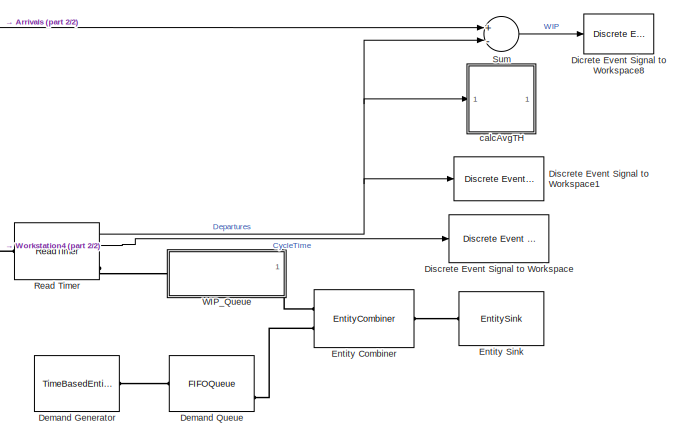
[diagram: root canvas - part 1/2, right side, full height]
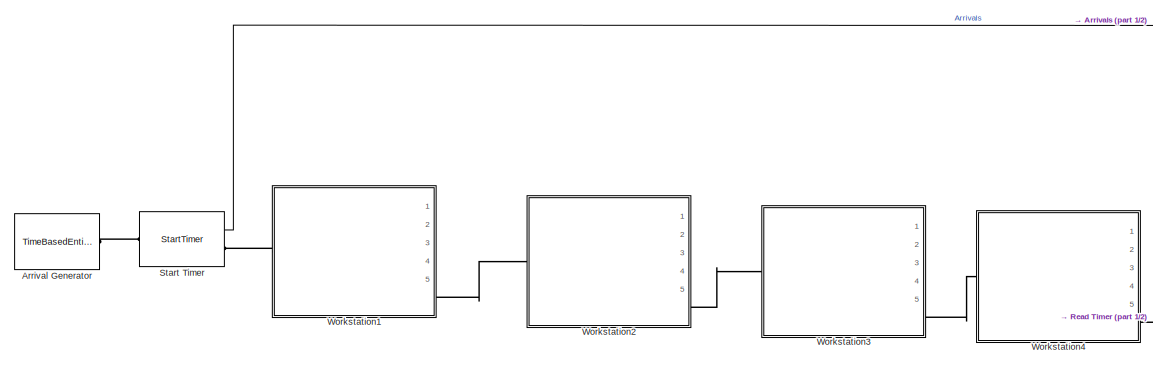
[diagram: root canvas - part 2/2, left side, full height]
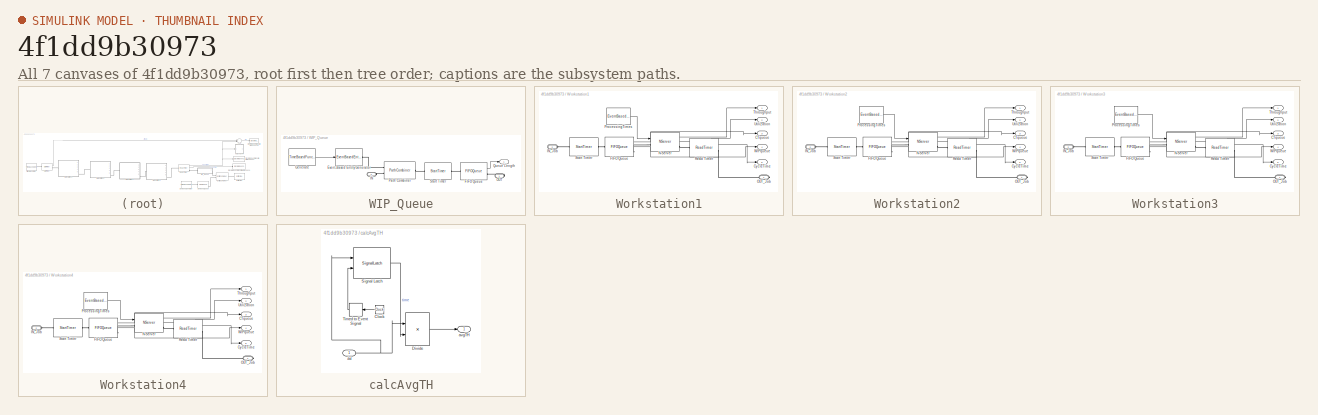
[diagram: thumbnail index - all 7 canvases of the model, root first then tree order]
MODEL slx_4f1dd9b30973
KIND model
CONFIG AbsTol = auto
CONFIG FixedStep = auto
CONFIG InitFcn = se_randomizeseeds(gcs, 'Mode', 'All')
CONFIG MaxStep = auto
CONFIG MinStep = auto
CONFIG PostLoadFcn = set_param(gcs, 'Location', [75 0 1300 1080])
CONFIG RelTol = 1e-3
CONFIG SampleTimeConstraint = Unconstrained
CONFIG Solver = ode45
CONFIG SolverMode = Auto
CONFIG SolverName = ode45
CONFIG StartTime = 0.0
CONFIG StopTime = 50000
BLOCK [TimeBasedEntityGenerator] Arrival Generator
  Distribution = Exponential
  InitialSeed = 62182
  Mean = 1/0.28
  Period = 1/0.37
  Ports = [0, 0, 0, 0, 0, 0, 1]
BLOCK [TimeBasedEntityGenerator] Demand Generator
  Distribution = Exponential
  InitialSeed = 65399
  Mean = 1/0.28
  Period = 1/0.37
  Ports = [0, 0, 0, 0, 0, 0, 1]
BLOCK [FIFOQueue] Demand Queue
  Capacity = 100
  OutputPortMap = o1,o2
  Ports = [0, 2, 0, 0, 0, 1, 1]
  StatAverageWait = on
  StatNumberInBlock = on
BLOCK [Reference] Dicrete Event Signal to Workspace8  REF=simeventslib/SimEvents
Sinks/Discrete Event Signal
to Workspace
  Decimation = 1
  MaxDataPoints = inf
  Ports = [1]
  SaveFormat = Structure With Time
  SourceBlock = simeventslib/SimEvents\nSinks/Discrete Event Signal\nto Workspace
  SourceType = Discrete Event Signal to Workspace
  VariableName = WIP
  isMonitorOnly = off
  isRecordIC = off
BLOCK [Reference] Discrete Event Signal to Workspace  REF=simeventslib/SimEvents
Sinks/Discrete Event Signal
to Workspace
  Decimation = 1
  MaxDataPoints = inf
  Ports = [1]
  SaveFormat = Structure With Time
  SourceBlock = simeventslib/SimEvents\nSinks/Discrete Event Signal\nto Workspace
  SourceType = Discrete Event Signal to Workspace
  VariableName = CycleTime
  isMonitorOnly = off
  isRecordIC = off
BLOCK [Reference] Discrete Event Signal to Workspace1  REF=simeventslib/SimEvents
Sinks/Discrete Event Signal
to Workspace
  Decimation = 1
  MaxDataPoints = inf
  Ports = [1]
  SaveFormat = Structure With Time
  SourceBlock = simeventslib/SimEvents\nSinks/Discrete Event Signal\nto Workspace
  SourceType = Discrete Event Signal to Workspace
  VariableName = Departures
  isMonitorOnly = off
  isRecordIC = off
BLOCK [EntityCombiner] Entity Combiner
  NumberInputPorts = 2
  Ports = [0, 0, 0, 0, 0, 2, 1]
  RetainComponentEntities = off
BLOCK [EntitySink] Entity Sink
  Ports = [0, 0, 0, 0, 0, 1]
BLOCK [ReadTimer] Read Timer
  OutputPortMap = o0,o2,o3
  Ports = [0, 3, 0, 0, 0, 1, 1]
  StatAverageTimeElapsed = on
  StatNumberDeparted = on
  StatTimeElapsed = on
  TimerTag = CycleTime
BLOCK [StartTimer] Start Timer
  OutputPortMap = o0
  Ports = [0, 1, 0, 0, 0, 1, 1]
  StatNumberDeparted = on
  TimerStartedOption = Restart
  TimerTag = CycleTime
BLOCK [Sum] Sum
  InputSameDT = off
  Inputs = +-
  OutDataTypeStr = Inherit: Inherit via internal rule
  Ports = [2, 1]
  SaturateOnIntegerOverflow = off
BLOCK [SubSystem] WIP_Queue
  Ports = [0, 1, 0, 0, 0, 1, 1]
  RequestExecContextInheritance = off
BLOCK [EventBasedEntityGenerator] WIP_Queue/Event-Based Entity Generator
  GenerateEntitiesUpon = Function call from port fcn
  InputPortMap = u0
  Ports = [1, 0, 0, 0, 0, 0, 1]
BLOCK [FIFOQueue] WIP_Queue/FIFO Queue
  OutputPortMap = o1
  Ports = [0, 1, 0, 0, 0, 1, 1]
  StatNumberInBlock = on
BLOCK [TimeBasedFunctionCallGenerator] WIP_Queue/Generate
  EventGenerationMode = Only at simulation start
  NumberOfEventsPerPeriod = NumberOfEventsPerPeriod
  OutputPortMap = o0
  Ports = [0, 1]
BLOCK [PMIOPort] WIP_Queue/IN
  Port = 2
  Side = Left
BLOCK [PMIOPort] WIP_Queue/OUT
  Port = 1
  Side = Right
BLOCK [PathCombiner] WIP_Queue/Path Combiner
  NumberInputPorts = 2
  Ports = [0, 0, 0, 0, 0, 2, 1]
BLOCK [Outport] WIP_Queue/Queue Length
  IconDisplay = Port number
BLOCK [StartTimer] WIP_Queue/Start Timer
  Ports = [0, 0, 0, 0, 0, 1, 1]
  TimerStartedOption = Restart
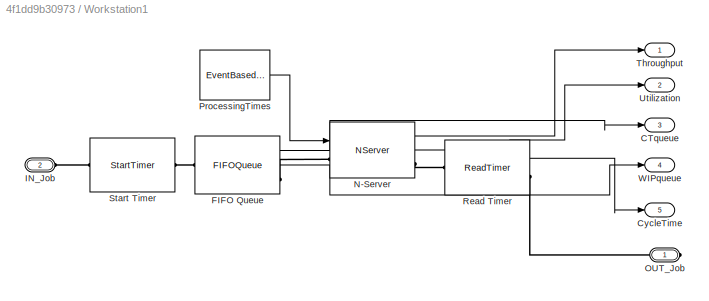
BLOCK [SubSystem] Workstation1
  Ports = [0, 5, 0, 0, 0, 1, 1]
  RequestExecContextInheritance = off
BLOCK [Outport] Workstation1/CTqueue
  IconDisplay = Port number
  Port = 3
BLOCK [Outport] Workstation1/CycleTime
  IconDisplay = Port number
  Port = 5
BLOCK [FIFOQueue] Workstation1/FIFO Queue
  Capacity = Capacity
  OutputPortMap = o2,o3
  Ports = [0, 2, 0, 0, 0, 1, 1]
  StatAverageQueueLength = on
  StatAverageWait = on
BLOCK [PMIOPort] Workstation1/IN_Job
  Port = 2
  Side = Left
BLOCK [NServer] Workstation1/N-Server
  InputPortMap = u0
  NumberOfServers = NumberOfServers
  OutputPortMap = o0,o5
  Ports = [1, 2, 0, 0, 0, 1, 1]
  ServiceTimeFrom = Signal port t
  StatNumberDeparted = on
  StatUtilization = on
BLOCK [PMIOPort] Workstation1/OUT_Job
  Port = 1
  Side = Right
BLOCK [EventBasedRandomNumber] Workstation1/ProcessingTimes
  OutputPortMap = o0
  Ports = [0, 1]
  Seed = 49314
  meanExp = 2
  meanNorm = 5
  stdNorm = 2
BLOCK [ReadTimer] Workstation1/Read Timer
  OutputPortMap = o3
  Ports = [0, 1, 0, 0, 0, 1, 1]
  StatAverageTimeElapsed = on
  TimerTag = WorkstationCycleTime
BLOCK [StartTimer] Workstation1/Start Timer
  Ports = [0, 0, 0, 0, 0, 1, 1]
  TimerStartedOption = Restart
  TimerTag = WorkstationCycleTime
BLOCK [Outport] Workstation1/Throughput
  IconDisplay = Port number
BLOCK [Outport] Workstation1/Utilization
  IconDisplay = Port number
  Port = 2
BLOCK [Outport] Workstation1/WIPqueue
  IconDisplay = Port number
  Port = 4
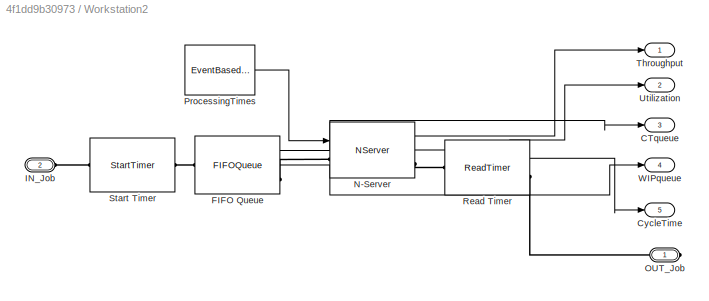
BLOCK [SubSystem] Workstation2
  Ports = [0, 5, 0, 0, 0, 1, 1]
  RequestExecContextInheritance = off
BLOCK [Outport] Workstation2/CTqueue
  IconDisplay = Port number
  Port = 3
BLOCK [Outport] Workstation2/CycleTime
  IconDisplay = Port number
  Port = 5
BLOCK [FIFOQueue] Workstation2/FIFO Queue
  Capacity = Capacity
  OutputPortMap = o2,o3
  Ports = [0, 2, 0, 0, 0, 1, 1]
  StatAverageQueueLength = on
  StatAverageWait = on
BLOCK [PMIOPort] Workstation2/IN_Job
  Port = 2
  Side = Left
BLOCK [NServer] Workstation2/N-Server
  InputPortMap = u0
  NumberOfServers = NumberOfServers
  OutputPortMap = o0,o5
  Ports = [1, 2, 0, 0, 0, 1, 1]
  ServiceTimeFrom = Signal port t
  StatNumberDeparted = on
  StatUtilization = on
BLOCK [PMIOPort] Workstation2/OUT_Job
  Port = 1
  Side = Right
BLOCK [EventBasedRandomNumber] Workstation2/ProcessingTimes
  OutputPortMap = o0
  Ports = [0, 1]
  Seed = 52531
  meanExp = 5
  meanNorm = 5
  stdNorm = 2
BLOCK [ReadTimer] Workstation2/Read Timer
  OutputPortMap = o3
  Ports = [0, 1, 0, 0, 0, 1, 1]
  StatAverageTimeElapsed = on
  TimerTag = WorkstationCycleTime
BLOCK [StartTimer] Workstation2/Start Timer
  Ports = [0, 0, 0, 0, 0, 1, 1]
  TimerStartedOption = Restart
  TimerTag = WorkstationCycleTime
BLOCK [Outport] Workstation2/Throughput
  IconDisplay = Port number
BLOCK [Outport] Workstation2/Utilization
  IconDisplay = Port number
  Port = 2
BLOCK [Outport] Workstation2/WIPqueue
  IconDisplay = Port number
  Port = 4
BLOCK [SubSystem] Workstation3
  Ports = [0, 5, 0, 0, 0, 1, 1]
  RequestExecContextInheritance = off
BLOCK [Outport] Workstation3/CTqueue
  IconDisplay = Port number
  Port = 3
BLOCK [Outport] Workstation3/CycleTime
  IconDisplay = Port number
  Port = 5
BLOCK [FIFOQueue] Workstation3/FIFO Queue
  Capacity = Capacity
  OutputPortMap = o2,o3
  Ports = [0, 2, 0, 0, 0, 1, 1]
  StatAverageQueueLength = on
  StatAverageWait = on
BLOCK [PMIOPort] Workstation3/IN_Job
  Port = 2
  Side = Left
BLOCK [NServer] Workstation3/N-Server
  InputPortMap = u0
  NumberOfServers = NumberOfServers
  OutputPortMap = o0,o5
  Ports = [1, 2, 0, 0, 0, 1, 1]
  ServiceTimeFrom = Signal port t
  StatNumberDeparted = on
  StatUtilization = on
BLOCK [PMIOPort] Workstation3/OUT_Job
  Port = 1
  Side = Right
BLOCK [EventBasedRandomNumber] Workstation3/ProcessingTimes
  OutputPortMap = o0
  Ports = [0, 1]
  Seed = 55748
  meanExp = 10
  meanNorm = 5
  stdNorm = 2
BLOCK [ReadTimer] Workstation3/Read Timer
  OutputPortMap = o3
  Ports = [0, 1, 0, 0, 0, 1, 1]
  StatAverageTimeElapsed = on
  TimerTag = WorkstationCycleTime
BLOCK [StartTimer] Workstation3/Start Timer
  Ports = [0, 0, 0, 0, 0, 1, 1]
  TimerStartedOption = Restart
  TimerTag = WorkstationCycleTime
BLOCK [Outport] Workstation3/Throughput
  IconDisplay = Port number
BLOCK [Outport] Workstation3/Utilization
  IconDisplay = Port number
  Port = 2
BLOCK [Outport] Workstation3/WIPqueue
  IconDisplay = Port number
  Port = 4
BLOCK [SubSystem] Workstation4
  Ports = [0, 5, 0, 0, 0, 1, 1]
  RequestExecContextInheritance = off
BLOCK [Outport] Workstation4/CTqueue
  IconDisplay = Port number
  Port = 3
BLOCK [Outport] Workstation4/CycleTime
  IconDisplay = Port number
  Port = 5
BLOCK [FIFOQueue] Workstation4/FIFO Queue
  Capacity = Capacity
  OutputPortMap = o2,o3
  Ports = [0, 2, 0, 0, 0, 1, 1]
  StatAverageQueueLength = on
  StatAverageWait = on
BLOCK [PMIOPort] Workstation4/IN_Job
  Port = 2
  Side = Left
BLOCK [NServer] Workstation4/N-Server
  InputPortMap = u0
  NumberOfServers = NumberOfServers
  OutputPortMap = o0,o5
  Ports = [1, 2, 0, 0, 0, 1, 1]
  ServiceTimeFrom = Signal port t
  StatNumberDeparted = on
  StatUtilization = on
BLOCK [PMIOPort] Workstation4/OUT_Job
  Port = 1
  Side = Right
BLOCK [EventBasedRandomNumber] Workstation4/ProcessingTimes
  OutputPortMap = o0
  Ports = [0, 1]
  Seed = 58965
  meanExp = 3
  meanNorm = 5
  stdNorm = 2
BLOCK [ReadTimer] Workstation4/Read Timer
  OutputPortMap = o3
  Ports = [0, 1, 0, 0, 0, 1, 1]
  StatAverageTimeElapsed = on
  TimerTag = WorkstationCycleTime
BLOCK [StartTimer] Workstation4/Start Timer
  Ports = [0, 0, 0, 0, 0, 1, 1]
  TimerStartedOption = Restart
  TimerTag = WorkstationCycleTime
BLOCK [Outport] Workstation4/Throughput
  IconDisplay = Port number
BLOCK [Outport] Workstation4/Utilization
  IconDisplay = Port number
  Port = 2
BLOCK [Outport] Workstation4/WIPqueue
  IconDisplay = Port number
  Port = 4
BLOCK [SubSystem] calcAvgTH
  Ports = [1, 1]
  RequestExecContextInheritance = off
BLOCK [Inport] calcAvgTH/#d
  IconDisplay = Port number
BLOCK [Clock] calcAvgTH/Clock
  Decimation = 1
  DisplayTime = on
BLOCK [Product] calcAvgTH/Divide
  InputSameDT = off
  Inputs = */
  OutDataTypeStr = Inherit: Inherit via internal rule
  Ports = [2, 1]
  RndMeth = Floor
  SaturateOnIntegerOverflow = off
BLOCK [SignalLatch] calcAvgTH/Signal Latch
  InputPortMap = u0,u2
  OutputPortMap = o2
  Ports = [2, 1]
  ReadMemoryUpon = Write to memory event
BLOCK [TimedToEventSignal] calcAvgTH/Timed to Event Signal
  InputPortMap = u0
  OutputPortMap = o0
  Ports = [1, 1]
BLOCK [Outport] calcAvgTH/avgTH
  IconDisplay = Port number
NET Read Timer:1 -> Discrete Event Signal to Workspace1:1, Sum:2, calcAvgTH:1
LINE Read Timer:2 -> Discrete Event Signal to Workspace:1
LINE Start Timer:1 -> Sum:1
LINE Sum:1 -> Dicrete Event Signal to Workspace8:1
LINE WIP_Queue/FIFO Queue:1 -> WIP_Queue/Queue Length:1
LINE WIP_Queue/Generate:1 -> WIP_Queue/Event-Based Entity Generator:1
LINE Workstation1/FIFO Queue:1 -> Workstation1/CTqueue:1
LINE Workstation1/FIFO Queue:2 -> Workstation1/WIPqueue:1
LINE Workstation1/N-Server:1 -> Workstation1/Throughput:1
LINE Workstation1/N-Server:2 -> Workstation1/Utilization:1
LINE Workstation1/ProcessingTimes:1 -> Workstation1/N-Server:1
LINE Workstation1/Read Timer:1 -> Workstation1/CycleTime:1
LINE Workstation2/FIFO Queue:1 -> Workstation2/CTqueue:1
LINE Workstation2/FIFO Queue:2 -> Workstation2/WIPqueue:1
LINE Workstation2/N-Server:1 -> Workstation2/Throughput:1
LINE Workstation2/N-Server:2 -> Workstation2/Utilization:1
LINE Workstation2/ProcessingTimes:1 -> Workstation2/N-Server:1
LINE Workstation2/Read Timer:1 -> Workstation2/CycleTime:1
LINE Workstation3/FIFO Queue:1 -> Workstation3/CTqueue:1
LINE Workstation3/FIFO Queue:2 -> Workstation3/WIPqueue:1
LINE Workstation3/N-Server:1 -> Workstation3/Throughput:1
LINE Workstation3/N-Server:2 -> Workstation3/Utilization:1
LINE Workstation3/ProcessingTimes:1 -> Workstation3/N-Server:1
LINE Workstation3/Read Timer:1 -> Workstation3/CycleTime:1
LINE Workstation4/FIFO Queue:1 -> Workstation4/CTqueue:1
LINE Workstation4/FIFO Queue:2 -> Workstation4/WIPqueue:1
LINE Workstation4/N-Server:1 -> Workstation4/Throughput:1
LINE Workstation4/N-Server:2 -> Workstation4/Utilization:1
LINE Workstation4/ProcessingTimes:1 -> Workstation4/N-Server:1
LINE Workstation4/Read Timer:1 -> Workstation4/CycleTime:1
NET calcAvgTH/#d:1 -> calcAvgTH/Divide:1, calcAvgTH/Signal Latch:1
LINE calcAvgTH/Clock:1 -> calcAvgTH/Timed to Event Signal:1
LINE calcAvgTH/Divide:1 -> calcAvgTH/avgTH:1
LINE calcAvgTH/Signal Latch:1 -> calcAvgTH/Divide:2
LINE calcAvgTH/Timed to Event Signal:1 -> calcAvgTH/Signal Latch:2
PLINE Arrival Generator:RConn1 -- Start Timer:LConn1
PLINE Demand Generator:RConn1 -- Demand Queue:LConn1
PLINE Demand Queue:RConn1 -- Entity Combiner:LConn2
PLINE Entity Combiner:LConn1 -- WIP_Queue:RConn1
PLINE Entity Combiner:RConn1 -- Entity Sink:LConn1
PLINE Read Timer:LConn1 -- Workstation4:RConn1
PLINE Read Timer:RConn1 -- WIP_Queue:LConn1
PLINE Start Timer:RConn1 -- Workstation1:LConn1
PLINE WIP_Queue/Event-Based Entity Generator:RConn1 -- WIP_Queue/Path Combiner:LConn1
PLINE WIP_Queue/FIFO Queue:LConn1 -- WIP_Queue/Start Timer:RConn1
PLINE WIP_Queue/FIFO Queue:RConn1 -- WIP_Queue/OUT:RConn1
PLINE WIP_Queue/IN:RConn1 -- WIP_Queue/Path Combiner:LConn2
PLINE WIP_Queue/Path Combiner:RConn1 -- WIP_Queue/Start Timer:LConn1
PLINE Workstation1/FIFO Queue:LConn1 -- Workstation1/Start Timer:RConn1
PLINE Workstation1/FIFO Queue:RConn1 -- Workstation1/N-Server:LConn1
PLINE Workstation1/IN_Job:RConn1 -- Workstation1/Start Timer:LConn1
PLINE Workstation1/N-Server:RConn1 -- Workstation1/Read Timer:LConn1
PLINE Workstation1/OUT_Job:RConn1 -- Workstation1/Read Timer:RConn1
PLINE Workstation1:RConn1 -- Workstation2:LConn1
PLINE Workstation2/FIFO Queue:LConn1 -- Workstation2/Start Timer:RConn1
PLINE Workstation2/FIFO Queue:RConn1 -- Workstation2/N-Server:LConn1
PLINE Workstation2/IN_Job:RConn1 -- Workstation2/Start Timer:LConn1
PLINE Workstation2/N-Server:RConn1 -- Workstation2/Read Timer:LConn1
PLINE Workstation2/OUT_Job:RConn1 -- Workstation2/Read Timer:RConn1
PLINE Workstation2:RConn1 -- Workstation3:LConn1
PLINE Workstation3/FIFO Queue:LConn1 -- Workstation3/Start Timer:RConn1
PLINE Workstation3/FIFO Queue:RConn1 -- Workstation3/N-Server:LConn1
PLINE Workstation3/IN_Job:RConn1 -- Workstation3/Start Timer:LConn1
PLINE Workstation3/N-Server:RConn1 -- Workstation3/Read Timer:LConn1
PLINE Workstation3/OUT_Job:RConn1 -- Workstation3/Read Timer:RConn1
PLINE Workstation3:RConn1 -- Workstation4:LConn1
PLINE Workstation4/FIFO Queue:LConn1 -- Workstation4/Start Timer:RConn1
PLINE Workstation4/FIFO Queue:RConn1 -- Workstation4/N-Server:LConn1
PLINE Workstation4/IN_Job:RConn1 -- Workstation4/Start Timer:LConn1
PLINE Workstation4/N-Server:RConn1 -- Workstation4/Read Timer:LConn1
PLINE Workstation4/OUT_Job:RConn1 -- Workstation4/Read Timer:RConn1
note: NET lines group one-source signal fan-out (src -> all destinations, sorted); 1:1 wires keep LINE
